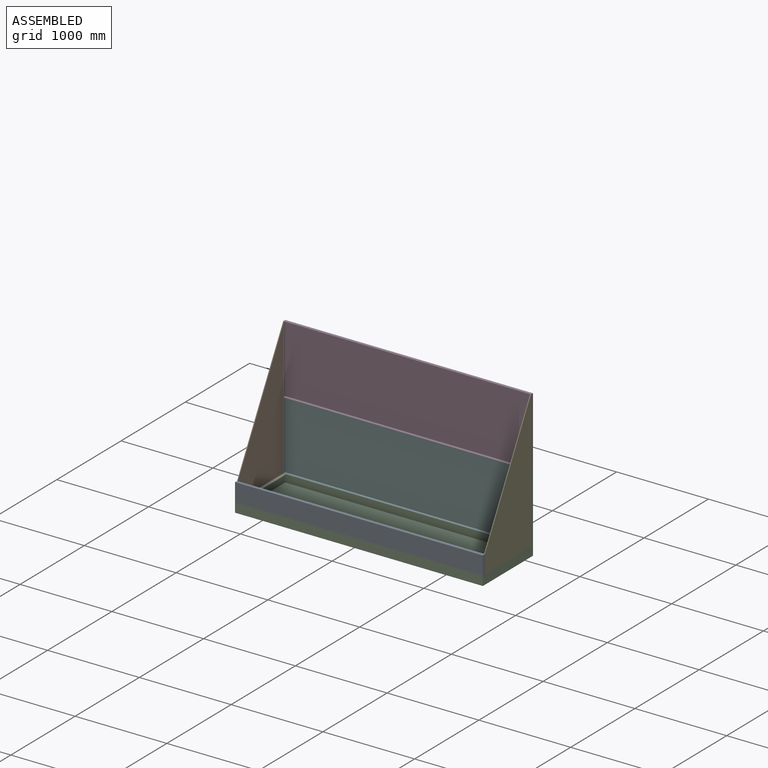
[diagram: assembled view]
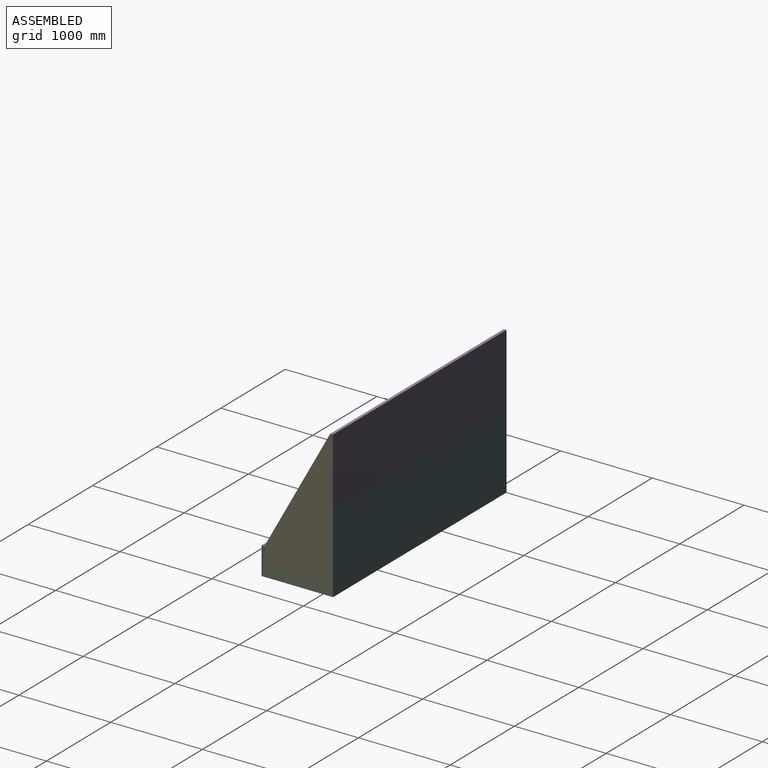
[diagram: assembled view, second angle]
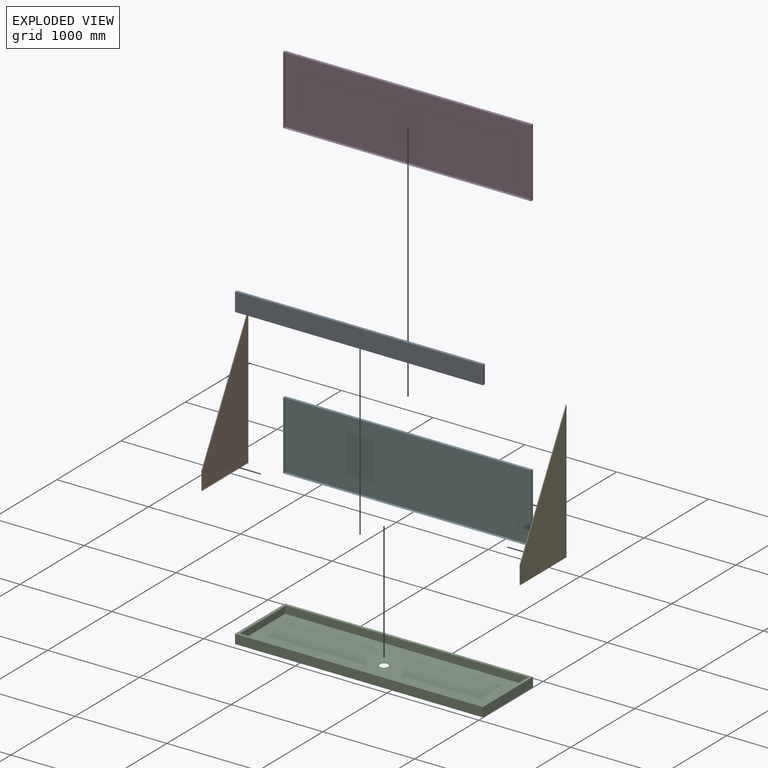
[diagram: exploded view]
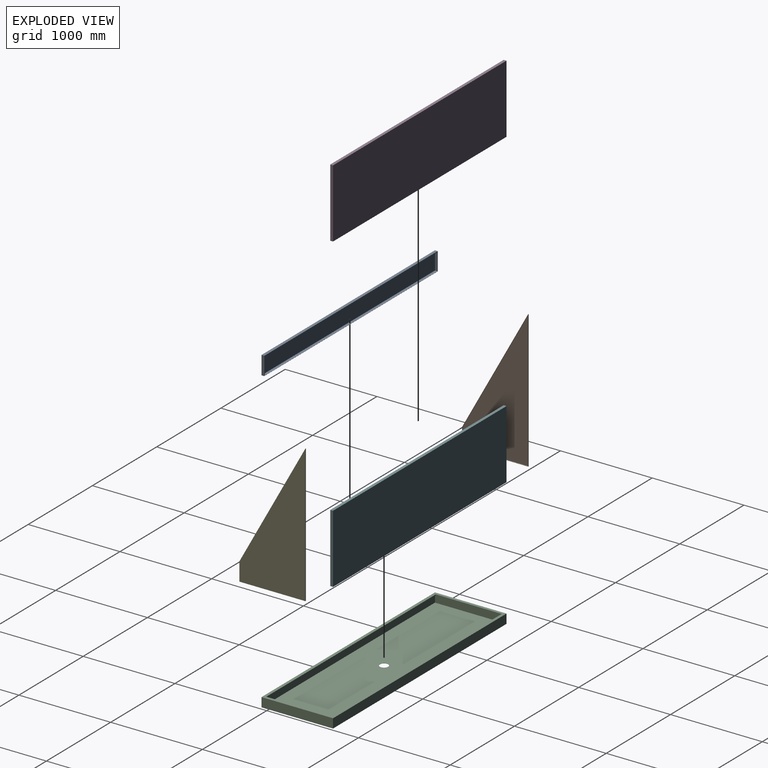
[diagram: exploded view, second angle]
ASSEMBLY  parts=6 mates=5
PART A: 18 faces, bbox 2700x31x200 mm
  f0: plane 182x1mm, normal (1,0,0), area 182mm2, adj f1,f4,f5,f6
  f1: plane 8x8mm, normal (0.71,0,-0.71), area 11.3mm2, adj f0,f5,f6,f14
  f2: plane 8x8mm, normal (-0.71,0,-0.71), area 11.3mm2, adj f3,f5,f6,f14
  f3: plane 182x1mm, normal (-1,0,0), area 182mm2, adj f2,f4,f5,f6
  f4: plane 2682x1mm, normal (0,0,-1), area 2682mm2, adj f0,f3,f5,f6
  f5: plane 2698x198mm, normal (0,-1,0), area 24560mm2, adj f0,f1,f2,f3,f4,f12,f13,f15
  f6: plane 2700x200mm, normal (0,1,0), area 30356mm2, adj f0,f1,f2,f3,f4,f7,f8,f9
  f7: plane 200x31mm, normal (-1,0,0), area 6200mm2, adj f6,f8,f10,f11
  f8: plane 2700x31mm, normal (0,0,-1), area 83686.1mm2, adj f6,f7,f9,f11,f17
  f9: plane 200x31mm, normal (1,0,0), area 6200mm2, adj f6,f8,f10,f11
  f10: plane 2700x31mm, normal (0,0,1), area 83700mm2, adj f6,f7,f9,f11
  f11: plane 2700x200mm, normal (0,-1,0), area 540000mm2, adj f7,f8,f9,f10
  f12: plane 2698x29mm, normal (0,0,-1), area 78242mm2, adj f5,f13,f15,f16
  f13: plane 198x29mm, normal (1,0,0), area 5742mm2, adj f5,f12,f14,f16
  f14: plane 2698x30mm, normal (0,0,1), area 80926.1mm2, adj f1,f2,f6,f13,f15,f16,f17
  f15: plane 198x29mm, normal (-1,0,0), area 5742mm2, adj f5,f12,f14,f16
  f16: plane 2698x198mm, normal (0,1,0), area 534204mm2, adj f12,f13,f14,f15
  f17: cylinder r=2.1mm len=4.2mm, axis (0,0,-1), area 13.2mm2, adj f8,f14
PART B: 12 faces, bbox 9x718x1500 mm
  f0: plane 1500x9mm, normal (0,-1,0), area 13500mm2, adj f1,f3,f4,f9
  f1: plane 718x9mm, normal (0,0,-1), area 6448.1mm2, adj f0,f2,f4,f9,f11
  f2: plane 200x9mm, normal (0,1,0), area 1800mm2, adj f1,f3,f4,f9
  f3: plane 1300x718mm, normal (0,0.88,0.48), area 13365.9mm2, adj f0,f2,f4,f9
  f4: plane 1500x718mm, normal (1,0,0), area 610300mm2, adj f0,f1,f2,f3
  f5: plane 1296.38x716mm, normal (0,-0.88,-0.48), area 11847.7mm2, adj f6,f8,f9,f10
  f6: plane 1495.12x8mm, normal (0,1,0), area 11961mm2, adj f5,f7,f9,f10
  f7: plane 716x8mm, normal (0,0,1), area 5714.1mm2, adj f6,f8,f9,f10,f11
  f8: plane 198.74x8mm, normal (0,-1,0), area 1589.9mm2, adj f5,f7,f9,f10
  f9: plane 1500x718mm, normal (-1,0,0), area 3897mm2, adj f0,f1,f2,f3,f5,f6,f7,f8
  f10: plane 1495.12x716mm, normal (-1,0,0), area 606403mm2, adj f5,f6,f7,f8
  f11: cylinder r=2.1mm len=4.2mm, axis (0,0,-1), area 13.2mm2, adj f1,f7
PART C: 26 faces, bbox 2700x780x101 mm
  f0: plane 780x101mm, normal (-1,0,0), area 78780mm2, adj f1,f3,f4,f5
  f1: plane 2700x101mm, normal (0,-1,0), area 272700mm2, adj f0,f2,f4,f5
  f2: plane 780x101mm, normal (1,0,0), area 78780mm2, adj f1,f3,f4,f5
  f3: plane 2700x101mm, normal (0,1,0), area 272700mm2, adj f0,f2,f4,f5
  f4: plane 2700x780mm, normal (0,0,-1), area 2099638.3mm2, adj f0,f1,f2,f3,f21
  f5: plane 2700x780mm, normal (0,0,1), area 211846.1mm2, adj f0,f1,f2,f3,f6,f7,f8,f9
  f6: plane 718x9mm, normal (1,0,0), area 6462mm2, adj f5,f7,f9,f15
  f7: plane 2638x9mm, normal (0,-1,0), area 23742mm2, adj f5,f6,f8,f15
  f8: plane 718x9mm, normal (-1,0,0), area 6462mm2, adj f5,f7,f9,f15
  f9: plane 2638x9mm, normal (0,1,0), area 23742mm2, adj f5,f6,f8,f15
  f10: plane 2698x778mm, normal (0,0,-1), area 198174.2mm2, adj f11,f12,f13,f14,f17,f18,f19,f20
  f11: plane 2640x8mm, normal (0,1,0), area 21120mm2, adj f10,f12,f14,f15
  f12: plane 720x8mm, normal (-1,0,0), area 5760mm2, adj f10,f11,f13,f15
  f13: plane 2640x8mm, normal (0,-1,0), area 21120mm2, adj f10,f12,f14,f15
  f14: plane 720x8mm, normal (1,0,0), area 5760mm2, adj f10,f11,f13,f15
  f15: plane 2640x720mm, normal (0,0,-1), area 6715.9mm2, adj f6,f7,f8,f9,f11,f12,f13,f14
  f16: plane 2698x778mm, normal (0,0,1), area 2092682.3mm2, adj f17,f18,f19,f20,f21
  f17: plane 778x99mm, normal (-1,0,0), area 77022mm2, adj f10,f16,f18,f20
  f18: plane 2698x99mm, normal (0,-1,0), area 267102mm2, adj f10,f16,f17,f19
  f19: plane 778x99mm, normal (1,0,0), area 77022mm2, adj f10,f16,f18,f20
  f20: plane 2698x99mm, normal (0,1,0), area 267102mm2, adj f10,f16,f17,f19
  f21: cylinder r=45mm len=90mm, axis (0,0,1), area 282.7mm2, adj f4,f16
  f22: cylinder r=2.1mm len=4.2mm, axis (0,0,1), area 13.2mm2, adj f5,f10
  f23: cylinder r=3mm len=6mm, axis (0,0,1), area 18.8mm2, adj f5,f10
  f24: cylinder r=2.1mm len=4.2mm, axis (0,0,1), area 13.2mm2, adj f5,f10
  f25: cylinder r=2.1mm len=4.2mm, axis (0,0,1), area 13.2mm2, adj f5,f10
PART D: 19 faces, bbox 2700x31x750 mm
  f0: plane 748x29mm, normal (1,0,0), area 21692mm2, adj f2,f8,f10,f16
  f1: plane 748x29mm, normal (-1,0,0), area 21692mm2, adj f2,f8,f10,f16
  f2: plane 2698x29mm, normal (0,0,-1), area 78228.1mm2, adj f0,f1,f10,f16,f18
  f3: plane 2700x31mm, normal (0,0,-1), area 83686.1mm2, adj f4,f6,f7,f9,f17
  f4: plane 750x31mm, normal (1,0,0), area 23250mm2, adj f3,f5,f7,f9
  f5: plane 2700x31mm, normal (0,0,1), area 83686.1mm2, adj f4,f6,f7,f9,f18
  f6: plane 750x31mm, normal (-1,0,0), area 23250mm2, adj f3,f5,f7,f9
  f7: plane 2700x750mm, normal (0,-1,0), area 2025000mm2, adj f3,f4,f5,f6
  f8: plane 2698x30mm, normal (0,0,1), area 80926.1mm2, adj f0,f1,f9,f10,f11,f15,f17
  f9: plane 2700x750mm, normal (0,1,0), area 40256mm2, adj f3,f4,f5,f6,f8,f11,f12,f13
  f10: plane 2698x748mm, normal (0,1,0), area 2018104mm2, adj f0,f1,f2,f8
  f11: plane 8x8mm, normal (-0.71,0,-0.71), area 11.3mm2, adj f8,f9,f12,f16
  f12: plane 732x1mm, normal (-1,0,0), area 732mm2, adj f9,f11,f13,f16
  f13: plane 2682x1mm, normal (0,0,-1), area 2682mm2, adj f9,f12,f14,f16
  f14: plane 732x1mm, normal (1,0,0), area 732mm2, adj f9,f13,f15,f16
  f15: plane 8x8mm, normal (0.71,0,-0.71), area 11.3mm2, adj f8,f9,f14,f16
  f16: plane 2698x748mm, normal (0,-1,0), area 33360mm2, adj f0,f1,f2,f11,f12,f13,f14,f15
  f17: cylinder r=2.1mm len=4.2mm, axis (0,0,-1), area 13.2mm2, adj f3,f8
  f18: cylinder r=2.1mm len=4.2mm, axis (0,0,-1), area 13.2mm2, adj f2,f5
PART E: 12 faces, bbox 9x718x1500 mm
  f0: plane 1500x9mm, normal (0,-1,0), area 13500mm2, adj f1,f3,f4,f9
  f1: plane 718x9mm, normal (0,0,-1), area 6448.1mm2, adj f0,f2,f4,f9,f11
  f2: plane 200x9mm, normal (0,1,0), area 1800mm2, adj f1,f3,f4,f9
  f3: plane 1300x718mm, normal (0,0.88,0.48), area 13365.9mm2, adj f0,f2,f4,f9
  f4: plane 1500x718mm, normal (-1,0,0), area 610300mm2, adj f0,f1,f2,f3
  f5: plane 1296.38x716mm, normal (0,-0.88,-0.48), area 11847.7mm2, adj f6,f8,f9,f10
  f6: plane 1495.12x8mm, normal (0,1,0), area 11961mm2, adj f5,f7,f9,f10
  f7: plane 716x8mm, normal (0,0,1), area 5714.1mm2, adj f6,f8,f9,f10,f11
  f8: plane 198.74x8mm, normal (0,-1,0), area 1589.9mm2, adj f5,f7,f9,f10
  f9: plane 1500x718mm, normal (1,0,0), area 3897mm2, adj f0,f1,f2,f3,f5,f6,f7,f8
  f10: plane 1495.12x716mm, normal (1,0,0), area 606403mm2, adj f5,f6,f7,f8
  f11: cylinder r=2.1mm len=4.2mm, axis (0,0,-1), area 13.2mm2, adj f1,f7
PART F: same geometry as D
PLACE A t=(-644.48,-16.5,-1.75)mm
PLACE B rot(axis=(0,0,1),180deg) t=(-643.48,731.5,-1.75)mm
PLACE C t=(-644.48,-17.5,-102.75)mm
PLACE D rot(axis=(0,0,1),180deg) t=(-644.48,761.5,748.25)mm
PLACE E rot(axis=(0,0,1),180deg) t=(2055.52,731.5,-1.75)mm
PLACE F rot(axis=(0,0,1),180deg) t=(-644.48,761.5,-1.75)mm
MATE pin_slot A.f17 <-> C.f25  axis (0,0,-1) through (705.52,-2.5,-1.75)mm
MATE pin_slot D.f17 <-> F.f17  axis (0,0,-1) through (705.52,747.5,748.25)mm
MATE pin_slot F.f17 <-> C.f24  axis (0,0,-1) through (705.52,747.5,-1.75)mm
MATE pin_slot B.f11 <-> C.f22  axis (0,0,-1) through (-638.48,372.5,-1.75)mm
MATE pin_slot E.f11 <-> C.f23  axis (0,0,-1) through (2049.52,372.5,-1.75)mm
